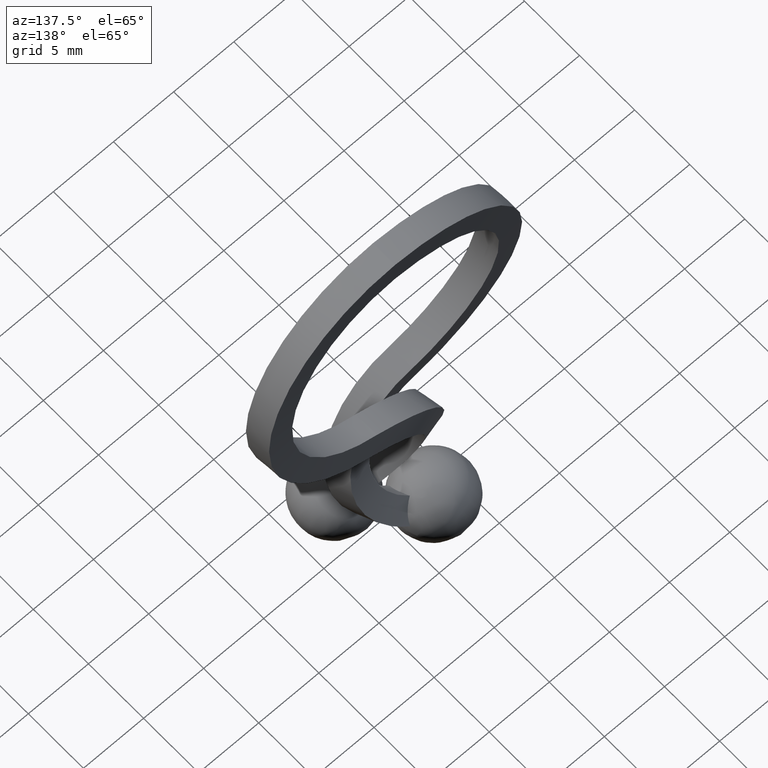
[diagram: clean part render]
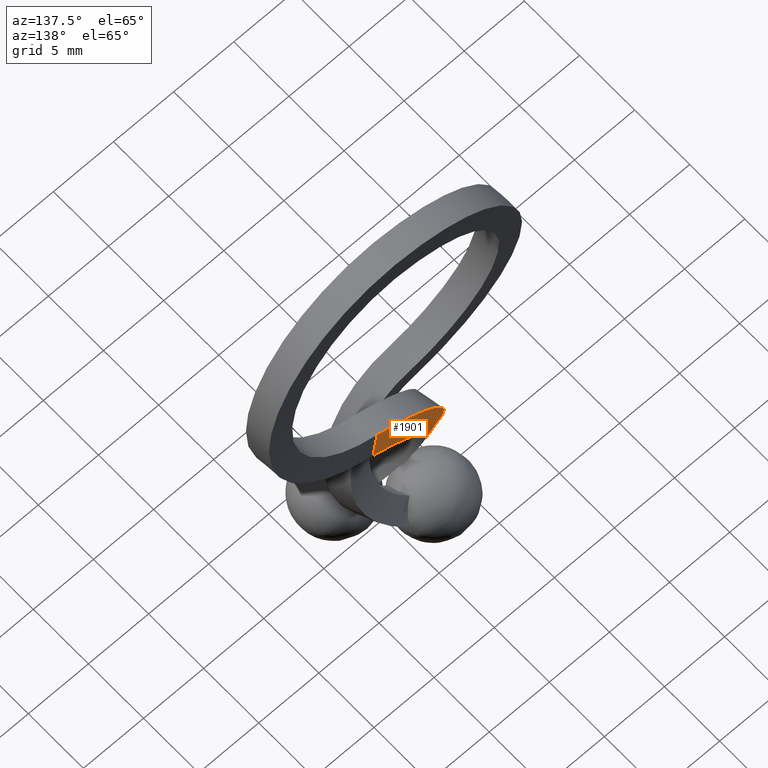
[diagram: same view with one face highlighted and labeled with its STEP entity id]
A machine part, auxiliary view. The second image highlights one B-rep face of the part: STEP entity #1901.
In plain terms, the highlighted face is a freeform B-spline surface patch.
Its self-contained STEP definition (entity closure, byte-faithful):
#209=CARTESIAN_POINT('',(-0.674003210500367,-1.294515618744942,-24.002159655791001));
#210=VERTEX_POINT('',#209);
#228=CARTESIAN_POINT('',(0.184196042498665,-0.287968488132313,-22.414279484146451));
#229=VERTEX_POINT('',#228);
#230=CARTESIAN_POINT('',(-0.674003210500368,-1.294515618744942,-24.002159655791001));
#231=CARTESIAN_POINT('',(-0.665057041118712,-1.204895292372089,-23.848345429698881));
#232=CARTESIAN_POINT('',(-0.639569729408767,-1.116372000557438,-23.698510111618710));
#233=CARTESIAN_POINT('',(-0.577621661864944,-0.984659415844221,-23.479763962574250));
#234=CARTESIAN_POINT('',(-0.552992224566123,-0.940936510892920,-23.407855810806389));
#235=CARTESIAN_POINT('',(-0.495634845970979,-0.853783080830636,-23.266135095743799));
#236=CARTESIAN_POINT('',(-0.462845827331529,-0.810280109782658,-23.196207356326561));
#237=CARTESIAN_POINT('',(-0.352169468460779,-0.680578428669632,-22.990491226401520));
#238=CARTESIAN_POINT('',(-0.264177293553220,-0.597556546645688,-22.862515312619749));
#239=CARTESIAN_POINT('',(-0.111647472036573,-0.477745119643009,-22.683979953577900));
#240=CARTESIAN_POINT('',(-0.057357105867929,-0.438602691117437,-22.626720009368320));
#241=CARTESIAN_POINT('',(0.058270090843689,-0.361928565820980,-22.516812463900511));
#242=CARTESIAN_POINT('',(0.119783605812994,-0.324309493641091,-22.464051044315141));
#243=CARTESIAN_POINT('',(0.184196042498665,-0.287968488132313,-22.414279484146451));
#244=B_SPLINE_CURVE_WITH_KNOTS('',3,(#230,#231,#232,#233,#234,#235,#236,#237,#238,#239,#240,#241,#242,#243),.UNSPECIFIED.,.F.,.U.,(4,2,2,2,2,2,4),(0.0,0.249999999999998,0.374999999999997,0.499999999999996,0.749999999999998,0.874999999999999,1.0),.UNSPECIFIED.);
#245=EDGE_CURVE('',#210,#229,#244,.T.);
#1181=CARTESIAN_POINT('',(2.358671733415280,1.960175868653700,-8.694603899422249));
#1182=VERTEX_POINT('',#1181);
#1417=CARTESIAN_POINT('',(2.918086088846110,2.173184630067220,-10.602971046314000));
#1418=VERTEX_POINT('',#1417);
#1521=CARTESIAN_POINT('',(2.358671733415280,1.960175868653700,-8.694603899422249));
#1522=CARTESIAN_POINT('',(2.406236822656662,1.978269395819953,-8.856702257247230));
#1523=CARTESIAN_POINT('',(2.453793690143792,1.996363120896857,-9.018802998060613));
#1524=CARTESIAN_POINT('',(2.501335670883174,2.014457198618165,-9.180908050544234));
#1525=CARTESIAN_POINT('',(2.548877673218226,2.032551284558604,-9.343013176663142));
#1526=CARTESIAN_POINT('',(2.596407264212756,2.050645665269995,-9.505121897976462));
#1527=CARTESIAN_POINT('',(2.643925655543665,2.068740311238750,-9.667233860920595));
#1528=CARTESIAN_POINT('',(2.735350449898801,2.103554185199724,-9.979135262873863));
#1529=CARTESIAN_POINT('',(2.826733524946121,2.138369047400174,-10.291048743505680));
#1530=CARTESIAN_POINT('',(2.918086088846110,2.173184630067220,-10.602971046314000));
#1531=B_SPLINE_CURVE_WITH_KNOTS('',3,(#1521,#1522,#1523,#1524,#1525,#1526,#1527,#1528,#1529,#1530),.UNSPECIFIED.,.F.,.U.,(4,3,3,4),(2.311885E-010,0.000509692036252,0.001019384072684,0.002000025220951),.UNSPECIFIED.);
#1532=EDGE_CURVE('',#1182,#1418,#1531,.T.);
#1624=CARTESIAN_POINT('',(2.358671733415280,1.960175868653700,-8.694603899422249));
#1625=CARTESIAN_POINT('',(2.358454592620007,1.960188537752270,-8.694668553772393));
#1626=CARTESIAN_POINT('',(2.358237279756053,1.960201216811504,-8.694733259686863));
#1627=CARTESIAN_POINT('',(2.152106569537881,1.972227781500567,-8.756109950193906));
#1628=CARTESIAN_POINT('',(1.910220836533945,1.984079235097631,-8.837624558718229));
#1629=CARTESIAN_POINT('',(1.471389839082284,2.000713492751328,-9.005937561155770));
#1630=CARTESIAN_POINT('',(1.255166186935915,2.006612031072719,-9.098514206081088));
#1631=CARTESIAN_POINT('',(0.617981927692510,2.017004876738490,-9.400664737509512));
#1632=CARTESIAN_POINT('',(0.208525575026950,2.014179772950690,-9.634719548518111));
#1633=CARTESIAN_POINT('',(-0.958419201950700,1.976560978559862,-10.425883596719890));
#1634=CARTESIAN_POINT('',(-1.653391858606968,1.912452860906464,-11.072117693143040));
#1635=CARTESIAN_POINT('',(-3.389782446386424,1.612232839395255,-13.274588682967581));
#1636=CARTESIAN_POINT('',(-4.065617755851418,1.265596714494927,-15.096372623928239));
#1637=CARTESIAN_POINT('',(-4.197611814971455,0.410729745211632,-18.756376339238159));
#1638=CARTESIAN_POINT('',(-3.653422262711807,-0.095245302167541,-20.584938206898279));
#1639=CARTESIAN_POINT('',(-2.073374750477606,-0.829664972212943,-22.810295247553999));
#1640=CARTESIAN_POINT('',(-1.418662508044106,-1.070212742831414,-23.464727506197750));
#1641=CARTESIAN_POINT('',(-0.674003210500367,-1.294515618744942,-24.002159655791001));
#1642=B_SPLINE_CURVE_WITH_KNOTS('',3,(#1624,#1625,#1626,#1627,#1628,#1629,#1630,#1631,#1632,#1633,#1634,#1635,#1636,#1637,#1638,#1639,#1640,#1641),.UNSPECIFIED.,.F.,.U.,(4,2,2,2,2,2,2,2,4),(0.113561345420679,0.113594351732374,0.144844351732374,0.176094351732374,0.238594351732374,0.363594351732374,0.613594351732374,0.863594351732374,0.989350646064616),.UNSPECIFIED.);
#1643=EDGE_CURVE('',#1182,#210,#1642,.T.);
#1810=CARTESIAN_POINT('',(2.918086088846110,2.173184630067220,-10.602971046314000));
#1811=CARTESIAN_POINT('',(2.748280962842760,2.182936624618440,-10.654162613997030));
#1812=CARTESIAN_POINT('',(2.587156907146012,2.190688428125246,-10.709038679977310));
#1813=CARTESIAN_POINT('',(2.250961706702481,2.203615627348940,-10.837168718008790));
#1814=CARTESIAN_POINT('',(2.079981731343078,2.208375790739123,-10.909945836676060));
#1815=CARTESIAN_POINT('',(1.576072957672911,2.216886309764263,-11.147591660580909));
#1816=CARTESIAN_POINT('',(1.252189074968550,2.214853549571989,-11.331822529126679));
#1817=CARTESIAN_POINT('',(0.328904588885573,2.185721284363152,-11.954939052645040));
#1818=CARTESIAN_POINT('',(-0.221266804268454,2.135452334352051,-12.464349441367011));
#1819=CARTESIAN_POINT('',(-1.596913318963821,1.899310196518996,-14.201580044821560));
#1820=CARTESIAN_POINT('',(-2.134050355104201,1.626018658563576,-15.639833839761330));
#1821=CARTESIAN_POINT('',(-2.244813789714889,0.951293339564063,-18.531405506432389));
#1822=CARTESIAN_POINT('',(-1.818147908993178,0.551640003205477,-19.977093186637770));
#1823=CARTESIAN_POINT('',(-0.657573968533317,0.010217840111060,-21.619583609699990));
#1824=CARTESIAN_POINT('',(-0.261255420132161,-0.142396076020577,-22.045033183723380));
#1825=CARTESIAN_POINT('',(0.184196042498665,-0.287968488132313,-22.414279484146451));
#1826=B_SPLINE_CURVE_WITH_KNOTS('',3,(#1810,#1811,#1812,#1813,#1814,#1815,#1816,#1817,#1818,#1819,#1820,#1821,#1822,#1823,#1824,#1825),.UNSPECIFIED.,.F.,.U.,(4,2,2,2,2,2,2,4),(0.001941430256337,0.031250000000000,0.062500000000000,0.125000000000000,0.250000000000000,0.500000000000000,0.750000000000000,0.850476408343053),.UNSPECIFIED.);
#1827=EDGE_CURVE('',#1418,#229,#1826,.T.);
#1834=CARTESIAN_POINT('',(2.450446423368009,1.954594245028250,-8.656711729846290));
#1835=CARTESIAN_POINT('',(2.650137635015499,2.025310036809306,-9.295892302334243));
#1836=CARTESIAN_POINT('',(2.849828846662972,2.096025828590364,-9.935072874822144));
#1837=CARTESIAN_POINT('',(3.049520058310462,2.166741620371429,-10.574253447310090));
#1838=CARTESIAN_POINT('',(2.420299063759122,1.956354906015213,-8.665677400271653));
#1839=CARTESIAN_POINT('',(2.619403316349826,2.027104239598557,-9.305035627048195));
#1840=CARTESIAN_POINT('',(2.818507568940512,2.097853573181902,-9.944393853824685));
#1841=CARTESIAN_POINT('',(3.017611821531212,2.168602906765260,-10.583752080601220));
#1842=CARTESIAN_POINT('',(2.389907206674249,1.958129231133371,-8.674718363704626));
#1843=CARTESIAN_POINT('',(2.588524217903232,2.028907040762244,-9.314221408555152));
#1844=CARTESIAN_POINT('',(2.787141229132192,2.099684850391120,-9.953724453405622));
#1845=CARTESIAN_POINT('',(2.985758240361168,2.170462660020007,-10.593227498256139));
#1846=CARTESIAN_POINT('',(2.149013279302042,1.972176653559368,-8.746448050413765));
#1847=CARTESIAN_POINT('',(2.356914851073259,2.042432899584439,-9.383103165831640));
#1848=CARTESIAN_POINT('',(2.564816422844506,2.112689145609459,-10.019758281249491));
#1849=CARTESIAN_POINT('',(2.772717994615768,2.182945391634490,-10.656413396667361));
#1850=CARTESIAN_POINT('',(1.906773302273702,1.984030864958791,-8.828111722245698));
#1851=CARTESIAN_POINT('',(2.138310171784881,2.053118371883631,-9.456849820960787));
#1852=CARTESIAN_POINT('',(2.369847041295957,2.122205878808483,-10.085587919675790));
#1853=CARTESIAN_POINT('',(2.601383910807080,2.191293385733344,-10.714326018390960));
#1854=CARTESIAN_POINT('',(1.028284276304288,2.017331324893572,-9.164927237166992));
#1855=CARTESIAN_POINT('',(1.321668073553865,2.084209891384256,-9.769384563653253));
#1856=CARTESIAN_POINT('',(1.615051870803523,2.151088457874918,-10.373841890139330));
#1857=CARTESIAN_POINT('',(1.908435668053187,2.217967024365595,-10.978299216625301));
#1858=CARTESIAN_POINT('',(-0.442845665355160,2.024512596860877,-9.932845944610529));
#1859=CARTESIAN_POINT('',(-0.046013544493807,2.091137535075353,-10.482249235656891));
#1860=CARTESIAN_POINT('',(0.350818576367654,2.157762473290102,-11.031652526703160));
#1861=CARTESIAN_POINT('',(0.747650697229160,2.224387411504774,-11.581055817749901));
#1862=CARTESIAN_POINT('',(-1.660657231033226,1.912152404699246,-11.064999451329641));
#1863=CARTESIAN_POINT('',(-1.178485490297906,1.986957344126403,-11.533780646393330));
#1864=CARTESIAN_POINT('',(-0.696313749562533,2.061762283553472,-12.002561841456190));
#1865=CARTESIAN_POINT('',(-0.214142008827123,2.136567222980712,-12.471343036519240));
#1866=CARTESIAN_POINT('',(-3.398815909721701,1.611443586180110,-13.269832267228839));
#1867=CARTESIAN_POINT('',(-2.795191274315776,1.707876276250742,-13.581967411128350));
#1868=CARTESIAN_POINT('',(-2.191566638909892,1.804308966321718,-13.894102555029230));
#1869=CARTESIAN_POINT('',(-1.587942003503962,1.900741656392355,-14.206237698930130));
#1870=CARTESIAN_POINT('',(-4.075354112684416,1.264313420701573,-15.093566528803370));
#1871=CARTESIAN_POINT('',(-3.425031675554939,1.385481485302647,-15.276567468161939));
#1872=CARTESIAN_POINT('',(-2.774709238425514,1.506649549904403,-15.459568407520511));
#1873=CARTESIAN_POINT('',(-2.124386801296038,1.627817614505821,-15.642569346879080));
#1874=CARTESIAN_POINT('',(-4.207460798242370,0.408301180345338,-18.757476434273858));
#1875=CARTESIAN_POINT('',(-3.549989367052262,0.590198948321673,-18.681747740291620));
#1876=CARTESIAN_POINT('',(-2.892517935862198,0.772096716297301,-18.606019046309431));
#1877=CARTESIAN_POINT('',(-2.235046504672088,0.953994484273292,-18.530290352327189));
#1878=CARTESIAN_POINT('',(-3.662680681727727,-0.098322075422007,-20.587983863944661));
#1879=CARTESIAN_POINT('',(-3.044776922746738,0.119409769700161,-20.383342469064019));
#1880=CARTESIAN_POINT('',(-2.426873163766477,0.337141614822309,-20.178701074186211));
#1881=CARTESIAN_POINT('',(-1.808969404786864,0.554873459944477,-19.974059679308379));
#1882=CARTESIAN_POINT('',(-2.058821771128513,-0.843928035896568,-22.846852951605719));
#1883=CARTESIAN_POINT('',(-1.555543251220551,-0.573597965989296,-22.483665351083221));
#1884=CARTESIAN_POINT('',(-1.052264731312270,-0.303267896082044,-22.120477750559310));
#1885=CARTESIAN_POINT('',(-0.548986211403583,-0.032937826174771,-21.757290150035381));
#1886=CARTESIAN_POINT('',(-1.370537393157995,-1.094599647274731,-23.525414576569140));
#1887=CARTESIAN_POINT('',(-0.916276294432628,-0.806612038039170,-23.114718171901782));
#1888=CARTESIAN_POINT('',(-0.462015195706307,-0.518624428803973,-22.704021767230980));
#1889=CARTESIAN_POINT('',(-0.007754096982042,-0.230636819568175,-22.293325362567678));
#1890=CARTESIAN_POINT('',(-0.586162120404412,-1.327112804311852,-24.075647323493751));
#1891=CARTESIAN_POINT('',(-0.187628908046217,-1.022772117219836,-23.626556547544450));
#1892=CARTESIAN_POINT('',(0.210904304313114,-0.718431430128334,-23.177465771591219));
#1893=CARTESIAN_POINT('',(0.609437516669241,-0.414090743035981,-22.728374995648689));
#1894=B_SPLINE_SURFACE_WITH_KNOTS('',3,3,((#1834,#1838,#1842,#1846,#1850,#1854,#1858,#1862,#1866,#1870,#1874,#1878,#1882,#1886,#1890),(#1835,#1839,#1843,#1847,#1851,#1855,#1859,#1863,#1867,#1871,#1875,#1879,#1883,#1887,#1891),(#1836,#1840,#1844,#1848,#1852,#1856,#1860,#1864,#1868,#1872,#1876,#1880,#1884,#1888,#1892),(#1837,#1841,#1845,#1849,#1853,#1857,#1861,#1865,#1869,#1873,#1877,#1881,#1885,#1889,#1893)),.UNSPECIFIED.,.F.,.F.,.U.,(4,4),(4,2,2,1,2,2,2,4),(0.0,2.020114345071197),(0.0,0.122792546886824,0.848499325368180,3.025619660812250,5.928446774737676,11.734101002588529,17.539755230439379,20.582174178578210),.UNSPECIFIED.);
#1895=ORIENTED_EDGE('',*,*,#245,.F.);
#1896=ORIENTED_EDGE('',*,*,#1643,.F.);
#1897=ORIENTED_EDGE('',*,*,#1532,.T.);
#1898=ORIENTED_EDGE('',*,*,#1827,.T.);
#1899=EDGE_LOOP('',(#1895,#1896,#1897,#1898));
#1900=FACE_OUTER_BOUND('',#1899,.T.);
#1901=ADVANCED_FACE('',(#1900),#1894,.T.);